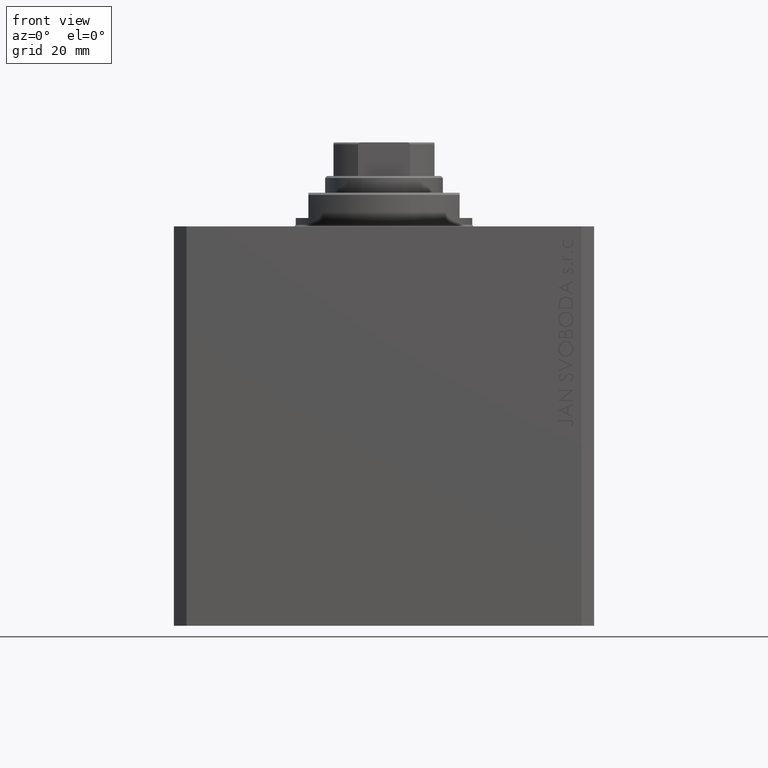
[diagram: clean part render]
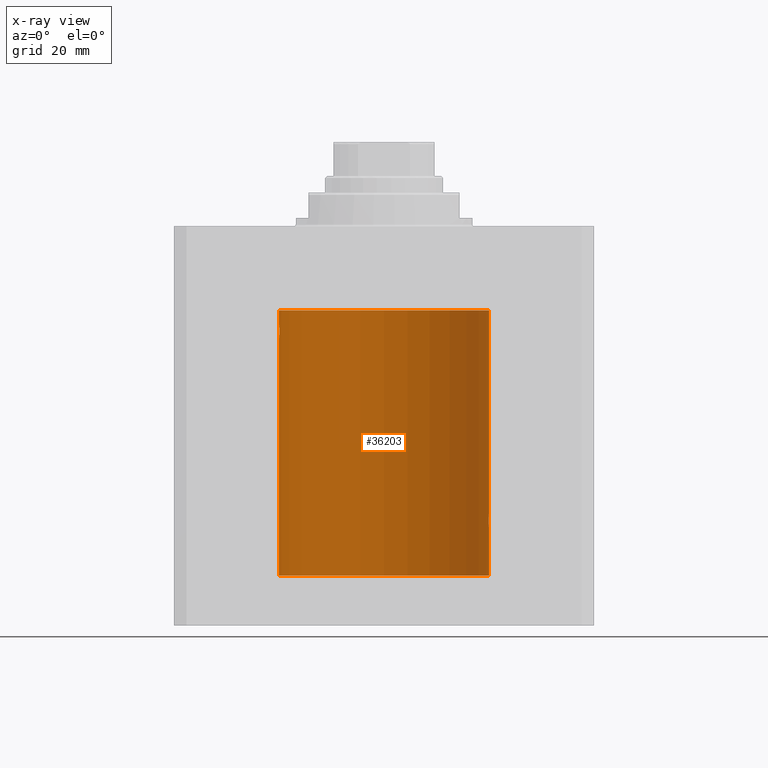
[diagram: x-ray — body ghosted, one internal face saturated and labeled with its STEP entity id]
A machine part, front view, then the same camera in x-ray: the body is ghosted and one INTERNAL B-rep face — a face not visible from any outside direction — is saturated and labeled: STEP entity #36203.
In plain terms, the highlighted cylindrical surface (partial cylindrical patch) has radius 25 mm, axis along (0, 0, 1).
Its self-contained STEP definition (entity closure, byte-faithful):
#1024 = CARTESIAN_POINT ( 'NONE',  ( 24.98457651818866765, 0.8863534138924961114, -68.20234421602243913 ) ) ;
#1259 = VERTEX_POINT ( 'NONE', #34513 ) ;
#1364 = DIRECTION ( 'NONE',  ( 0.000000000000000000, 0.000000000000000000, 1.000000000000000000 ) ) ;
#1468 = VECTOR ( 'NONE', #42220, 1000.000000000000000 ) ;
#1804 = EDGE_CURVE ( 'NONE', #1259, #11354, #27786, .T. ) ;
#3089 = B_SPLINE_CURVE_WITH_KNOTS ( 'NONE', 3,
 ( #41417, #19679, #9152, #23741, #36137, #24672, #24895, #6987, #13662, #10092, #39453, #31603, #39227, #28016 ),
 .UNSPECIFIED., .F., .F.,
 ( 4, 2, 2, 2, 2, 2, 4 ),
 ( 3.511612687242254074E-18, 0.0003910529405526748294, 0.0007821058811053461894, 0.001173158821658017766, 0.001564211762210689343, 0.002346317643316032063, 0.003128423524421375217 ),
 .UNSPECIFIED. ) ;
#3960 = EDGE_CURVE ( 'NONE', #41617, #11680, #12471, .T. ) ;
#4597 = CARTESIAN_POINT ( 'NONE',  ( 24.93982559358191153, 1.735040297787688646, -68.99670286233151728 ) ) ;
#4632 = VERTEX_POINT ( 'NONE', #9465 ) ;
#4767 = DIRECTION ( 'NONE',  ( 1.000000000000000000, 0.000000000000000000, 0.000000000000000000 ) ) ;
#4997 = VERTEX_POINT ( 'NONE', #32997 ) ;
#5081 = ORIENTED_EDGE ( 'NONE', *, *, #23684, .F. ) ;
#5187 = AXIS2_PLACEMENT_3D ( 'NONE', #16656, #28355, #38629 ) ;
#5385 = ORIENTED_EDGE ( 'NONE', *, *, #32913, .T. ) ;
#5392 = VECTOR ( 'NONE', #27525, 1000.000000000000000 ) ;
#6620 = CARTESIAN_POINT ( 'NONE',  ( 25.00000000000000000, 0.000000000000000000, -83.09999999999999432 ) ) ;
#6833 = AXIS2_PLACEMENT_3D ( 'NONE', #19327, #27428, #4767 ) ;
#6866 = CARTESIAN_POINT ( 'NONE',  ( -24.94950203352433604, 1.598895442473012851, -23.77053781758364792 ) ) ;
#6987 = CARTESIAN_POINT ( 'NONE',  ( 24.97046928552373046, 1.219632852334577633, -71.59046721778373978 ) ) ;
#7103 = CARTESIAN_POINT ( 'NONE',  ( -24.98456984035221851, 0.8865449913022026562, -26.79756360895472156 ) ) ;
#8028 = VECTOR ( 'NONE', #28256, 1000.000000000000000 ) ;
#8652 = CARTESIAN_POINT ( 'NONE',  ( 25.00000000000000000, 0.000000000000000000, -83.09999999999999432 ) ) ;
#8670 = ORIENTED_EDGE ( 'NONE', *, *, #8897, .T. ) ;
#8897 = EDGE_CURVE ( 'NONE', #33295, #41617, #3089, .T. ) ;
#9152 = CARTESIAN_POINT ( 'NONE',  ( 24.99895171050671294, 0.2622427397369110347, -71.98701522632683236 ) ) ;
#9465 = CARTESIAN_POINT ( 'NONE',  ( -25.00000000000000000, 3.061616987151861079E-15, -26.99999999999999645 ) ) ;
#10092 = CARTESIAN_POINT ( 'NONE',  ( 24.94948532700468391, 1.599156973339999066, -71.22913415249136904 ) ) ;
#10242 = CARTESIAN_POINT ( 'NONE',  ( -25.00000000000000000, 3.061616997868383043E-15, -20.00000000000000355 ) ) ;
#10247 = EDGE_LOOP ( 'NONE', ( #5081, #16379, #36061, #8670, #41517, #14640, #5385, #13235, #39420 ) ) ;
#10433 = CARTESIAN_POINT ( 'NONE',  ( -24.97048098995609422, 1.219391728175664324, -23.40935049578022031 ) ) ;
#10672 = CARTESIAN_POINT ( 'NONE',  ( -24.93980871060585258, 1.735282661184229358, -26.00288189918856219 ) ) ;
#11354 = VERTEX_POINT ( 'NONE', #10242 ) ;
#11680 = VERTEX_POINT ( 'NONE', #43377 ) ;
#11791 = CARTESIAN_POINT ( 'NONE',  ( -24.97044682385318026, 1.220055540032808805, -26.59010549084178265 ) ) ;
#11986 = CARTESIAN_POINT ( 'NONE',  ( 24.99199530066696795, 0.6440939830361788188, -68.10201906410964057 ) ) ;
#12471 = B_SPLINE_CURVE_WITH_KNOTS ( 'NONE', 3,
 ( #29926, #44483, #23222, #26560, #26316, #22741, #4597, #19169, #22990, #34217, #33752, #26806, #1024, #11986, #30152, #33977, #44712, #41376 ),
 .UNSPECIFIED., .F., .F.,
 ( 4, 2, 2, 2, 2, 2, 2, 2, 4 ),
 ( 0.003128423524421375217, 0.003519296810509137119, 0.003910170096596899021, 0.004301043382684660923, 0.004691916668772423693, 0.005082789954860184728, 0.005473663240947946630, 0.005864536527035708532, 0.006255409813123470435 ),
 .UNSPECIFIED. ) ;
#13235 = ORIENTED_EDGE ( 'NONE', *, *, #1804, .F. ) ;
#13662 = CARTESIAN_POINT ( 'NONE',  ( 24.96516502151963124, 1.322522485723470531, -71.50597235110980421 ) ) ;
#13787 = CARTESIAN_POINT ( 'NONE',  ( -25.00000000000001066, 0.1305561315491718666, -27.00000000000000711 ) ) ;
#14024 = CARTESIAN_POINT ( 'NONE',  ( -24.94946096189906015, 1.590491165172939647, -26.21955560407613461 ) ) ;
#14256 = CARTESIAN_POINT ( 'NONE',  ( -24.92424086025528496, 1.947362422016076788, -24.47497476601984090 ) ) ;
#14640 = ORIENTED_EDGE ( 'NONE', *, *, #39807, .T. ) ;
#14739 = CARTESIAN_POINT ( 'NONE',  ( -24.99895219182537787, 0.2621830013652935443, -23.01297886590101172 ) ) ;
#15281 = VECTOR ( 'NONE', #37774, 1000.000000000000000 ) ;
#16028 = LINE ( 'NONE', #38253, #15281 ) ;
#16135 = VERTEX_POINT ( 'NONE', #17026 ) ;
#16379 = ORIENTED_EDGE ( 'NONE', *, *, #40503, .F. ) ;
#16656 = CARTESIAN_POINT ( 'NONE',  ( 0.000000000000000000, 0.000000000000000000, -83.09999999999999432 ) ) ;
#17026 = CARTESIAN_POINT ( 'NONE',  ( 25.00000000000000000, 0.000000000000000000, -20.00000000000000355 ) ) ;
#17625 = CARTESIAN_POINT ( 'NONE',  ( -24.99197317726958545, 0.6449463114735953795, -23.10230905830972858 ) ) ;
#18332 = CARTESIAN_POINT ( 'NONE',  ( -25.00000000000000000, -9.880247245846597702E-15, -23.00000000000000000 ) ) ;
#19169 = CARTESIAN_POINT ( 'NONE',  ( 24.94947734723934829, 1.590234439578154468, -68.78011295253190838 ) ) ;
#19327 = CARTESIAN_POINT ( 'NONE',  ( 0.000000000000000000, 0.000000000000000000, -83.09999999999999432 ) ) ;
#19679 = CARTESIAN_POINT ( 'NONE',  ( 25.00000000000000355, 0.1322318523520167877, -72.00000000000002842 ) ) ;
#20355 = LINE ( 'NONE', #8652, #5392 ) ;
#20447 = CARTESIAN_POINT ( 'NONE',  ( 0.000000000000000000, 0.000000000000000000, -20.00000000000000355 ) ) ;
#20735 = LINE ( 'NONE', #6620, #1468 ) ;
#21075 = CARTESIAN_POINT ( 'NONE',  ( -25.00000000000000000, 3.061616997868383043E-15, -83.09999999999999432 ) ) ;
#21263 = CARTESIAN_POINT ( 'NONE',  ( 25.00000000000000000, 3.613683980139323145E-15, -72.00000000000001421 ) ) ;
#21672 = CARTESIAN_POINT ( 'NONE',  ( -24.99492963589240091, 0.5195477780157325975, -26.93575766978349151 ) ) ;
#21912 = CARTESIAN_POINT ( 'NONE',  ( -24.98014837415680489, 1.002010110534174547, -23.26418383162123149 ) ) ;
#22741 = CARTESIAN_POINT ( 'NONE',  ( 24.93533359819881667, 1.797683477752171743, -69.11371245509397454 ) ) ;
#22990 = CARTESIAN_POINT ( 'NONE',  ( 24.95467834240023919, 1.507571193169164436, -68.67914516237102873 ) ) ;
#23222 = CARTESIAN_POINT ( 'NONE',  ( 24.92092960952687264, 1.986938806757485132, -69.73699118910587913 ) ) ;
#23386 = AXIS2_PLACEMENT_3D ( 'NONE', #20447, #1364, #34795 ) ;
#23684 = EDGE_CURVE ( 'NONE', #4997, #4632, #16028, .T. ) ;
#23741 = CARTESIAN_POINT ( 'NONE',  ( 24.99496001540385848, 0.5180074392840622322, -71.93614799461352050 ) ) ;
#24534 = FACE_OUTER_BOUND ( 'NONE', #10247, .T. ) ;
#24672 = CARTESIAN_POINT ( 'NONE',  ( 24.98454161695537223, 0.8873356620645981296, -71.79717267434570260 ) ) ;
#24895 = CARTESIAN_POINT ( 'NONE',  ( 24.98014008684978648, 1.002218476749560327, -71.73569824284065533 ) ) ;
#25016 = CARTESIAN_POINT ( 'NONE',  ( -24.96517827869064021, 1.322271947215002852, -23.49381014772490417 ) ) ;
#25265 = CARTESIAN_POINT ( 'NONE',  ( -24.95466269969938011, 1.507830206157726893, -26.32056178261444046 ) ) ;
#25667 = CIRCLE ( 'NONE', #23386, 25.00000000000000000 ) ;
#26316 = CARTESIAN_POINT ( 'NONE',  ( 24.92790171662583276, 1.897957730269075105, -69.35585098575666052 ) ) ;
#26362 = CARTESIAN_POINT ( 'NONE',  ( -24.99199174798888023, 0.6442364453337716679, -26.89793475977048232 ) ) ;
#26560 = CARTESIAN_POINT ( 'NONE',  ( 24.92495585240437350, 1.935777409849491759, -69.48051441220840729 ) ) ;
#26806 = CARTESIAN_POINT ( 'NONE',  ( 24.98009620012517829, 1.003265033550135854, -68.26494305889431757 ) ) ;
#27405 = CYLINDRICAL_SURFACE ( 'NONE', #5187, 25.00000000000000000 ) ;
#27428 = DIRECTION ( 'NONE',  ( 0.000000000000000000, 0.000000000000000000, 1.000000000000000000 ) ) ;
#27525 = DIRECTION ( 'NONE',  ( -0.000000000000000000, -0.000000000000000000, 1.000000000000000000 ) ) ;
#27786 = LINE ( 'NONE', #21075, #8028 ) ;
#28016 = CARTESIAN_POINT ( 'NONE',  ( 24.91987158875419794, 2.000000000000375255, -70.00000000000000000 ) ) ;
#28185 = CIRCLE ( 'NONE', #6833, 25.00000000000000000 ) ;
#28256 = DIRECTION ( 'NONE',  ( -0.000000000000000000, -0.000000000000000000, 1.000000000000000000 ) ) ;
#28355 = DIRECTION ( 'NONE',  ( -0.000000000000000000, -0.000000000000000000, 1.000000000000000000 ) ) ;
#28383 = CARTESIAN_POINT ( 'NONE',  ( -25.00000000000000000, 3.061616987151861079E-15, -26.99999999999999645 ) ) ;
#28606 = CARTESIAN_POINT ( 'NONE',  ( -24.96524308704138662, 1.321128302361972873, -26.50733385850702817 ) ) ;
#28841 = CARTESIAN_POINT ( 'NONE',  ( -24.91987913663314558, 1.999905953907249456, -24.73827023896789967 ) ) ;
#29323 = CARTESIAN_POINT ( 'NONE',  ( -24.92788761901291750, 1.898142276082072089, -25.64361034516351978 ) ) ;
#29852 = EDGE_CURVE ( 'NONE', #1259, #4632, #34691, .T. ) ;
#29926 = CARTESIAN_POINT ( 'NONE',  ( 24.91987158875419794, 2.000000000000375255, -70.00000000000000000 ) ) ;
#30152 = CARTESIAN_POINT ( 'NONE',  ( 24.99493190796009046, 0.5194315891213243663, -68.06421314474678752 ) ) ;
#31603 = CARTESIAN_POINT ( 'NONE',  ( 24.92422785753204906, 1.947526681255389525, -70.52444535332155340 ) ) ;
#32198 = CARTESIAN_POINT ( 'NONE',  ( -24.92494360443313894, 1.935934657392621272, -25.51890776192067278 ) ) ;
#32427 = CARTESIAN_POINT ( 'NONE',  ( -24.99496228453478608, 0.5178909248663671194, -23.06382286360416956 ) ) ;
#32913 = EDGE_CURVE ( 'NONE', #16135, #11354, #25667, .T. ) ;
#32914 = CARTESIAN_POINT ( 'NONE',  ( -24.92092244115666944, 1.987028274514494930, -25.26234881237649432 ) ) ;
#32997 = CARTESIAN_POINT ( 'NONE',  ( -25.00000000000000000, 3.061616997868383043E-15, -83.09999999999999432 ) ) ;
#33295 = VERTEX_POINT ( 'NONE', #21263 ) ;
#33752 = CARTESIAN_POINT ( 'NONE',  ( 24.97045842037802998, 1.219816859706691625, -68.40971381657300299 ) ) ;
#33977 = CARTESIAN_POINT ( 'NONE',  ( 24.99894413130754600, 0.2631018416927612402, -68.01307842488789390 ) ) ;
#34217 = CARTESIAN_POINT ( 'NONE',  ( 24.96525661602875701, 1.320872503675244003, -68.49244428507738292 ) ) ;
#34513 = CARTESIAN_POINT ( 'NONE',  ( -25.00000000000000000, -9.880247245846597702E-15, -23.00000000000000000 ) ) ;
#34691 = B_SPLINE_CURVE_WITH_KNOTS ( 'NONE', 3,
 ( #18332, #43394, #14739, #32427, #17625, #46980, #21912, #10433, #25016, #6866, #36490, #14256, #28841, #39821, #32914, #32198, #29323, #43877, #10672, #14024, #25265, #28606, #11791, #46512, #7103, #26362, #21672, #36249, #13787, #28383 ),
 .UNSPECIFIED., .F., .F.,
 ( 4, 2, 2, 2, 2, 2, 2, 2, 2, 2, 2, 2, 2, 2, 4 ),
 ( 1.711460648662030874E-19, 0.0003909631133201684925, 0.0007819262266403368767, 0.001172889339960505152, 0.001563852453280673536, 0.002345778679921010305, 0.003127704906561347507, 0.003518668019881516108, 0.003909631133201684275, 0.004300594246521852876, 0.004691557359842020609, 0.005082520473162189210, 0.005473483586482357811, 0.005864446699802525545, 0.006255409813122695013 ),
 .UNSPECIFIED. ) ;
#34795 = DIRECTION ( 'NONE',  ( 1.000000000000000000, 0.000000000000000000, 0.000000000000000000 ) ) ;
#36061 = ORIENTED_EDGE ( 'NONE', *, *, #43695, .T. ) ;
#36137 = CARTESIAN_POINT ( 'NONE',  ( 24.99196954445030627, 0.6450912151121352966, -71.89764367645020116 ) ) ;
#36203 = ADVANCED_FACE ( 'NONE', ( #24534 ), #27405, .F. ) ;
#36249 = CARTESIAN_POINT ( 'NONE',  ( -24.99894363691344168, 0.2631623743596695486, -26.98691550260398841 ) ) ;
#36490 = CARTESIAN_POINT ( 'NONE',  ( -24.93902394873053296, 1.747880816115506164, -23.99362802520557025 ) ) ;
#37774 = DIRECTION ( 'NONE',  ( -0.000000000000000000, -0.000000000000000000, 1.000000000000000000 ) ) ;
#37786 = CARTESIAN_POINT ( 'NONE',  ( 25.00000000000000000, 0.000000000000000000, -83.09999999999999432 ) ) ;
#38253 = CARTESIAN_POINT ( 'NONE',  ( -25.00000000000000000, 3.061616997868383043E-15, -83.09999999999999432 ) ) ;
#38629 = DIRECTION ( 'NONE',  ( 1.000000000000000000, 0.000000000000000000, 0.000000000000000000 ) ) ;
#39227 = CARTESIAN_POINT ( 'NONE',  ( 24.91987158875419439, 2.000000000000375699, -70.26107520611000723 ) ) ;
#39285 = CARTESIAN_POINT ( 'NONE',  ( 24.91987158875419794, 2.000000000000375255, -70.00000000000000000 ) ) ;
#39420 = ORIENTED_EDGE ( 'NONE', *, *, #29852, .T. ) ;
#39453 = CARTESIAN_POINT ( 'NONE',  ( 24.93900639076503722, 1.748128916801924504, -71.00595645684244062 ) ) ;
#39807 = EDGE_CURVE ( 'NONE', #11680, #16135, #20735, .T. ) ;
#39821 = CARTESIAN_POINT ( 'NONE',  ( -24.91986783040116649, 2.000046828840892577, -25.12978542103931545 ) ) ;
#40503 = EDGE_CURVE ( 'NONE', #42149, #4997, #28185, .T. ) ;
#41376 = CARTESIAN_POINT ( 'NONE',  ( 25.00000000000000000, -1.072061970195355044E-23, -68.00000000000000000 ) ) ;
#41417 = CARTESIAN_POINT ( 'NONE',  ( 25.00000000000000000, 3.613683980139323145E-15, -72.00000000000001421 ) ) ;
#41517 = ORIENTED_EDGE ( 'NONE', *, *, #3960, .T. ) ;
#41617 = VERTEX_POINT ( 'NONE', #39285 ) ;
#42149 = VERTEX_POINT ( 'NONE', #37786 ) ;
#42220 = DIRECTION ( 'NONE',  ( -0.000000000000000000, -0.000000000000000000, 1.000000000000000000 ) ) ;
#43377 = CARTESIAN_POINT ( 'NONE',  ( 25.00000000000000000, -1.072061970195355044E-23, -68.00000000000000000 ) ) ;
#43394 = CARTESIAN_POINT ( 'NONE',  ( -25.00000000000000000, 0.1322014778934262891, -23.00000000000000355 ) ) ;
#43695 = EDGE_CURVE ( 'NONE', #42149, #33295, #20355, .T. ) ;
#43877 = CARTESIAN_POINT ( 'NONE',  ( -24.93531696180024682, 1.797913585505315215, -25.88582454002299826 ) ) ;
#44483 = CARTESIAN_POINT ( 'NONE',  ( 24.91987158875419439, 2.000000000000375699, -69.86952236750347822 ) ) ;
#44712 = CARTESIAN_POINT ( 'NONE',  ( 25.00000000000000000, 0.1305261351234896783, -67.99999999999997158 ) ) ;
#46512 = CARTESIAN_POINT ( 'NONE',  ( -24.98008786170526108, 1.003474227436682797, -26.73493817401089956 ) ) ;
#46980 = CARTESIAN_POINT ( 'NONE',  ( -24.98454822070441850, 0.8871466876120172040, -23.20273613247366384 ) ) ;